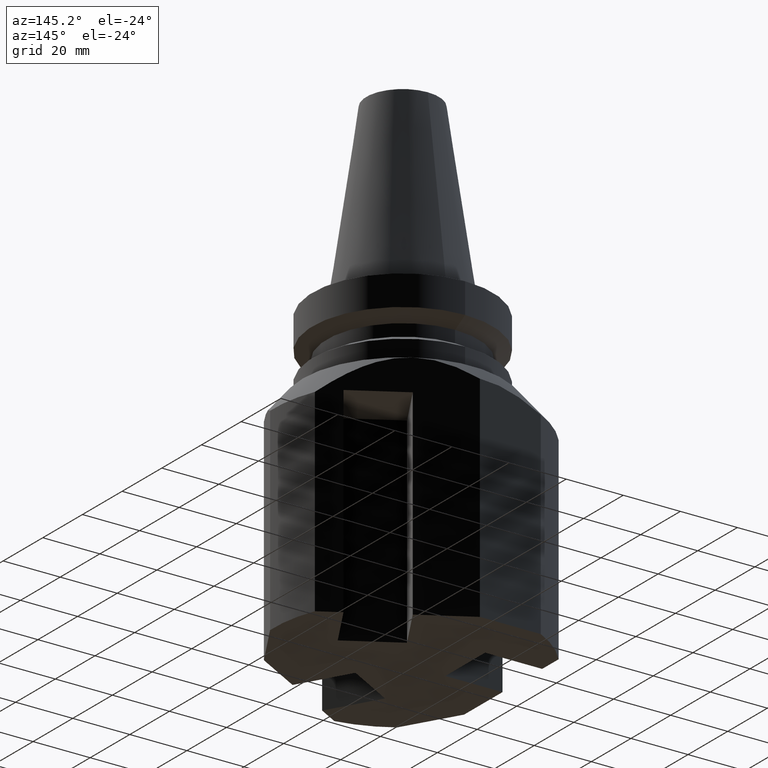
[diagram: clean part render]
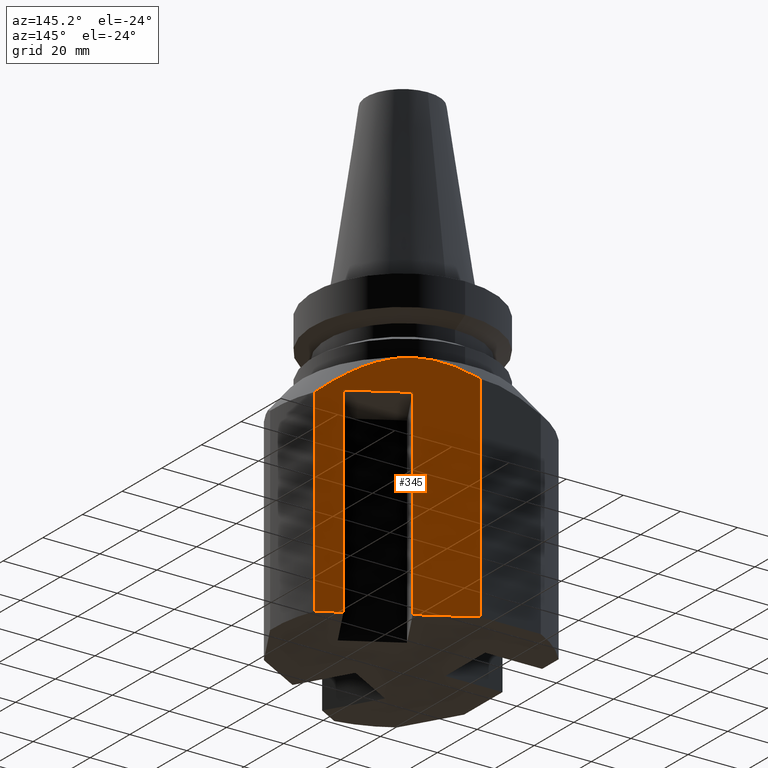
[diagram: same view with one face highlighted and labeled with its STEP entity id]
A machine part, auxiliary view. The second image highlights one B-rep face of the part: STEP entity #345.
In plain terms, the highlighted planar face has unit normal (-0.5, -0.866, 0).
Its self-contained STEP definition (entity closure, byte-faithful):
#154=EDGE_CURVE('Unnamed[1]',#451,#452,#453,.T.);
#184=EDGE_CURVE('Unnamed[1]',#452,#480,#503,.T.);
#207=EDGE_CURVE('Unnamed[1]',#535,#536,#537,.T.);
#226=EDGE_CURVE('Unnamed[1]',#566,#567,#568,.T.);
#245=EDGE_CURVE('Unnamed[1]',#480,#590,#591,.T.);
#249=EDGE_CURVE('Unnamed[1]',#451,#596,#597,.T.);
#263=EDGE_CURVE('Unnamed[1]',#596,#566,#615,.T.);
#284=EDGE_CURVE('Unnamed[1]',#567,#643,#644,.T.);
#327=EDGE_CURVE('Unnamed[1]',#535,#590,#699,.T.);
#345=ADVANCED_FACE('Unnamed[1]',(#721),#722,.F.);
#356=EDGE_CURVE('Unnamed[1]',#643,#536,#735,.T.);
#451=VERTEX_POINT('',#847);
#452=VERTEX_POINT('',#848);
#453=LINE('',#849,#850);
#480=VERTEX_POINT('',#887);
#503=LINE('',#937,#938);
#535=VERTEX_POINT('',#982);
#536=VERTEX_POINT('',#983);
#537=LINE('',#984,#985);
#566=VERTEX_POINT('',#1044);
#567=VERTEX_POINT('',#1045);
#568=(B_SPLINE_CURVE(2,(#1047,#1048,#1049),.UNSPECIFIED.,.F.,.F.)B_SPLINE_CURVE_WITH_KNOTS((3,3),(0.0,31.0884589206537),.UNSPECIFIED.)RATIONAL_B_SPLINE_CURVE((1.0,1.06899021366147,1.0))BOUNDED_CURVE()REPRESENTATION_ITEM('')GEOMETRIC_REPRESENTATION_ITEM()CURVE());
#590=VERTEX_POINT('',#1089);
#591=LINE('',#1090,#1091);
#596=VERTEX_POINT('',#1099);
#597=LINE('',#1100,#1101);
#615=LINE('',#1129,#1130);
#643=VERTEX_POINT('',#1174);
#644=LINE('',#1175,#1176);
#699=LINE('',#1253,#1254);
#721=FACE_OUTER_BOUND('',#1284,.T.);
#722=PLANE('',#1285);
#735=(B_SPLINE_CURVE(2,(#1306,#1307,#1308),.UNSPECIFIED.,.F.,.F.)B_SPLINE_CURVE_WITH_KNOTS((3,3),(0.0,31.0884589206537),.UNSPECIFIED.)RATIONAL_B_SPLINE_CURVE((1.0,1.06899021366147,1.0))BOUNDED_CURVE()REPRESENTATION_ITEM('')GEOMETRIC_REPRESENTATION_ITEM()CURVE());
#847=CARTESIAN_POINT('',(34.8205080756888,20.3108891324547,-110.0));
#848=CARTESIAN_POINT('',(34.8205080756888,20.3108891324547,-39.9999999999998));
#849=CARTESIAN_POINT('',(34.8205080756888,20.3108891324547,-279.0));
#850=VECTOR('',#1438,1.0);
#887=CARTESIAN_POINT('',(17.4999999999994,30.310889132454,-39.9999999999998));
#937=CARTESIAN_POINT('',(3.77207337036354,38.2367112674889,-39.9999999999998));
#938=VECTOR('',#1473,1.0);
#982=CARTESIAN_POINT('',(0.717967697240111,40.0000000000001,-110.0));
#983=CARTESIAN_POINT('',(0.717967697240115,40.0000000000001,-34.96644493123));
#984=CARTESIAN_POINT('',(0.7179676972401,40.0000000000001,-279.0));
#985=VECTOR('',#1515,1.0);
#1044=CARTESIAN_POINT('',(41.9948974278317,16.1687535087242,-40.9175350302165));
#1045=CARTESIAN_POINT('',(17.5087838003882,30.3058178029351,-28.9999997615812));
#1047=CARTESIAN_POINT('',(41.9948974278793,16.1687535086968,-40.9175350302577));
#1048=CARTESIAN_POINT('',(28.2214587654325,24.1208520281264,-29.004271823806));
#1049=CARTESIAN_POINT('',(17.5087838003882,30.3058178029351,-28.9999997615812));
#1089=CARTESIAN_POINT('',(17.4999999999994,30.310889132454,-110.0));
#1090=CARTESIAN_POINT('',(17.4999999999994,30.310889132454,-279.0));
#1091=VECTOR('',#1557,1.0);
#1099=CARTESIAN_POINT('',(41.9948974278317,16.1687535087242,-110.0));
#1100=CARTESIAN_POINT('',(14.5568233849795,32.0101329434082,-110.0));
#1101=VECTOR('',#1559,1.0);
#1129=CARTESIAN_POINT('',(41.9948974278319,16.1687535087241,-75.4587675151083));
#1130=VECTOR('',#1572,1.0);
#1174=CARTESIAN_POINT('',(17.4912161996077,30.3159604619747,-28.9999997615812));
#1175=CARTESIAN_POINT('',(12.2293799532183,33.3538830352591,-28.9999997615812));
#1176=VECTOR('',#1591,1.0);
#1253=CARTESIAN_POINT('',(14.5568233849795,32.0101329434082,-110.0));
#1254=VECTOR('',#1695,1.0);
#1284=EDGE_LOOP('',(#1729,#1730,#1731,#1732,#1733,#1734,#1735,#1736,#1737,#1738));
#1285=AXIS2_PLACEMENT_3D('',#1739,#1740,#1741);
#1306=CARTESIAN_POINT('',(17.4912161996077,30.3159604619747,-28.9999997615812));
#1307=CARTESIAN_POINT('',(6.77854123456338,36.5009262367834,-29.004271823806));
#1308=CARTESIAN_POINT('',(-6.99489742788338,44.453024756213,-40.9175350302577));
#1438=DIRECTION('',(6.12323399573677E-017,1.22464679914735E-016,1.0));
#1473=DIRECTION('',(-0.866025403784461,0.499999999999962,-8.20357802111623E-018));
#1515=DIRECTION('',(6.12323399573677E-017,1.22464679914735E-016,1.0));
#1557=DIRECTION('',(-6.12323399573677E-017,-1.22464679914735E-016,-1.0));
#1559=DIRECTION('',(0.866025403784461,-0.499999999999962,2.21878097816348E-015));
#1572=DIRECTION('',(6.12323399573677E-017,2.6993447194459E-016,1.0));
#1591=DIRECTION('',(-0.866025403784461,0.499999999999962,-8.20357802111623E-018));
#1695=DIRECTION('',(0.866025403784461,-0.499999999999962,2.21878097816348E-015));
#1729=ORIENTED_EDGE('',*,*,#245,.T.);
#1730=ORIENTED_EDGE('',*,*,#327,.F.);
#1731=ORIENTED_EDGE('',*,*,#207,.T.);
#1732=ORIENTED_EDGE('',*,*,#356,.F.);
#1733=ORIENTED_EDGE('',*,*,#284,.F.);
#1734=ORIENTED_EDGE('',*,*,#226,.F.);
#1735=ORIENTED_EDGE('',*,*,#263,.F.);
#1736=ORIENTED_EDGE('',*,*,#249,.F.);
#1737=ORIENTED_EDGE('',*,*,#154,.T.);
#1738=ORIENTED_EDGE('',*,*,#184,.T.);
#1739=CARTESIAN_POINT('',(21.3564325625359,28.0843767543622,-279.0));
#1740=DIRECTION('',(-0.499999999999962,-0.866025403784461,1.36673693851175E-016));
#1741=DIRECTION('',(0.866025403784461,-0.499999999999962,8.20357802111623E-018));